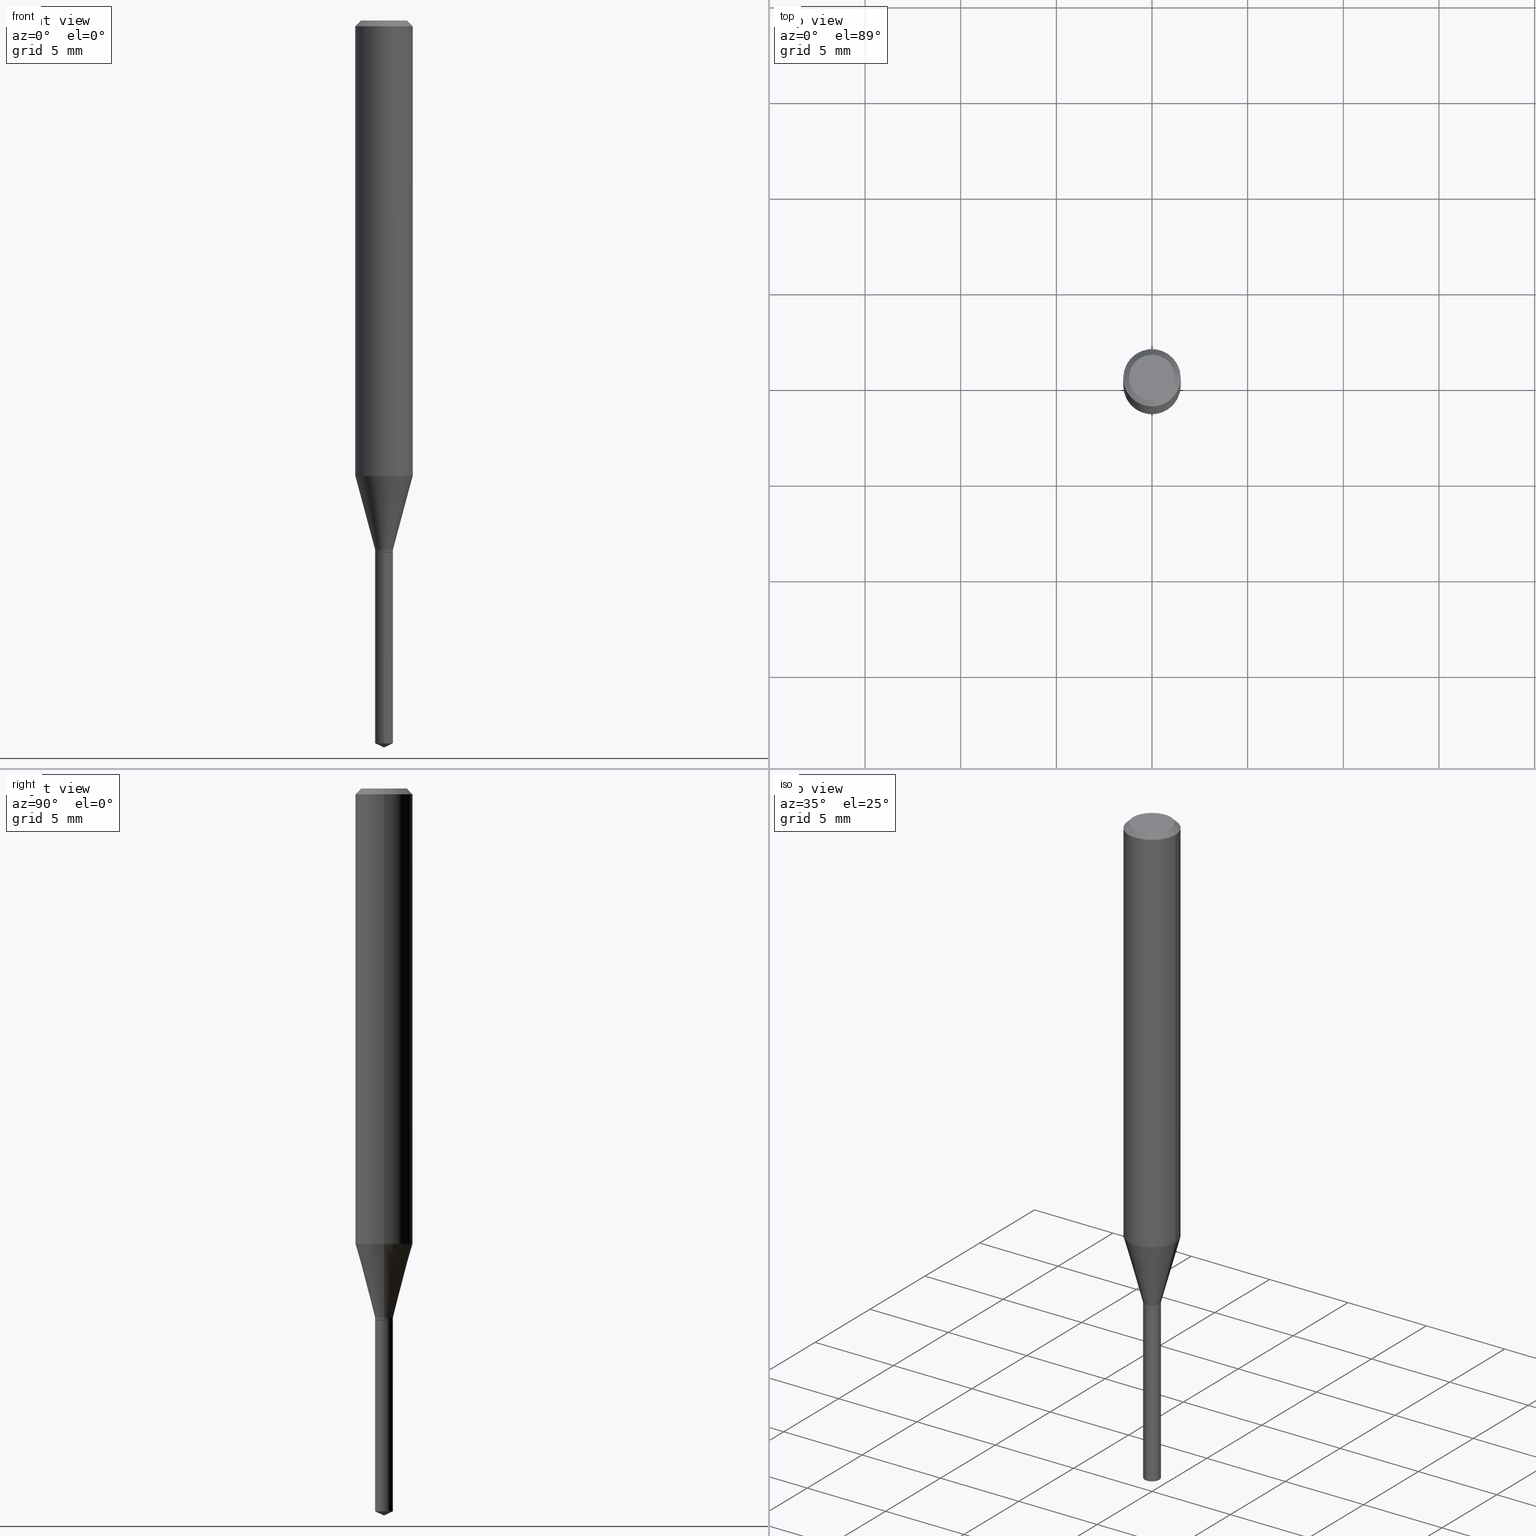
[diagram: canonical four-view strip — front | top / right | iso, engineering-drawing reading convention]
A machine part, canonical four-view strip (front | top / right | iso — engineering-drawing reading convention). The complete STEP part file that produces these views, byte-faithful:
ISO-10303-21;
HEADER;
FILE_DESCRIPTION (( 'STEP AP203' ),
    '1' );
FILE_NAME ('08321.STEP',
    '2024-04-24T14:19:01',
    ( '' ),
    ( '' ),
    'SwSTEP 2.0',
    'SolidWorks 2023',
    '' );
FILE_SCHEMA (( 'CONFIG_CONTROL_DESIGN' ));
ENDSEC;

DATA;
#1 = ORIENTED_EDGE ( 'NONE', *, *, #59, .T. ) ;
#2 = EDGE_LOOP ( 'NONE', ( #355, #142 ) ) ;
#3 = CALENDAR_DATE ( 2024, 24, 4 ) ;
#4 = DIRECTION ( 'NONE',  ( -2.445468806185136597E-29, 3.491481338843145583E-15, 1.000000000000000000 ) ) ;
#5 = AXIS2_PLACEMENT_3D ( 'NONE', #226, #150, #224 ) ;
#6 = ORIENTED_EDGE ( 'NONE', *, *, #206, .F. ) ;
#7 = AXIS2_PLACEMENT_3D ( 'NONE', #17, #51, #24 ) ;
#8 = CARTESIAN_POINT ( 'NONE',  ( 2.888098660104663328E-31, -4.123439461173779030E-17, -0.01181000000000006871 ) ) ;
#9 = ORIENTED_EDGE ( 'NONE', *, *, #123, .F. ) ;
#10 = ADVANCED_FACE ( 'NONE', ( #261 ), #417, .F. ) ;
#11 = UNCERTAINTY_MEASURE_WITH_UNIT (LENGTH_MEASURE( 1.000000000000000082E-05 ), #253, 'distance_accuracy_value', 'NONE');
#12 = DIRECTION ( 'NONE',  ( 0.7071067811865218156, -2.468850131081987665E-15, 0.7071067811865732189 ) ) ;
#13 = DATE_AND_TIME ( #3, #439 ) ;
#14 = AXIS2_PLACEMENT_3D ( 'NONE', #398, #242, #239 ) ;
#15 = DIRECTION ( 'NONE',  ( 1.000000000000000000, -6.982962677686268288E-15, 0.000000000000000000 ) ) ;
#16 = ORIENTED_EDGE ( 'NONE', *, *, #477, .F. ) ;
#17 = CARTESIAN_POINT ( 'NONE',  ( 3.637794463447608962E-29, -5.193815473249464484E-15, -1.487566569855763410 ) ) ;
#18 = DATE_AND_TIME ( #232, #235 ) ;
#19 = AXIS2_PLACEMENT_3D ( 'NONE', #420, #280, #324 ) ;
#20 = EDGE_CURVE ( 'NONE', #256, #252, #274, .T. ) ;
#21 = AXIS2_PLACEMENT_3D ( 'NONE', #322, #275, #433 ) ;
#22 = FACE_OUTER_BOUND ( 'NONE', #57, .T. ) ;
#23 = DIRECTION ( 'NONE',  ( 2.438088387897960049E-29, -3.491481338843145188E-15, -1.000000000000000000 ) ) ;
#24 = DIRECTION ( 'NONE',  ( -6.982962677686265922E-15, -1.000000000000000000, 0.000000000000000000 ) ) ;
#25 = ADVANCED_FACE ( 'NONE', ( #259 ), #247, .T. ) ;
#26 = APPROVAL ( #422, 'UNSPECIFIED' ) ;
#27 = LINE ( 'NONE', #413, #480 ) ;
#28 = ORIENTED_EDGE ( 'NONE', *, *, #228, .F. ) ;
#29 = AXIS2_PLACEMENT_3D ( 'NONE', #427, #75, #195 ) ;
#30 = VECTOR ( 'NONE', #117, 39.37007874015748143 ) ;
#31 = EDGE_LOOP ( 'NONE', ( #16, #456, #66, #301 ) ) ;
#32 = DIRECTION ( 'NONE',  ( -2.445468806185136597E-29, 3.491481338843145583E-15, 1.000000000000000000 ) ) ;
#33 = CARTESIAN_POINT ( 'NONE',  ( 2.675342873966538993E-29, -3.819680584694400481E-15, -1.093999999999999861 ) ) ;
#34 = ORIENTED_EDGE ( 'NONE', *, *, #20, .F. ) ;
#35 = EDGE_CURVE ( 'NONE', #447, #407, #352, .T. ) ;
#36 = CARTESIAN_POINT ( 'NONE',  ( -0.05905000000000010241, -2.851659473211515038E-15, -0.9369189295915679727 ) ) ;
#37 = VECTOR ( 'NONE', #423, 39.37007874015748143 ) ;
#38 = AXIS2_PLACEMENT_3D ( 'NONE', #459, #351, #312 ) ;
#39 = PERSON_AND_ORGANIZATION ( #202, #230 ) ;
#40 = APPROVAL_DATE_TIME ( #18, #233 ) ;
#41 = EDGE_CURVE ( 'NONE', #252, #218, #65, .T. ) ;
#42 = CARTESIAN_POINT ( 'NONE',  ( 2.888098660104663328E-31, -4.123439461173779030E-17, -0.01181000000000006871 ) ) ;
#43 = LOCAL_TIME ( 10, 19, 1.000000000000000000, #385 ) ;
#44 = DIRECTION ( 'NONE',  ( 1.000000000000000000, -6.982962677686265922E-15, 4.876176775795935793E-29 ) ) ;
#45 = CARTESIAN_POINT ( 'NONE',  ( 0.000000000000000000, 0.000000000000000000, 0.000000000000000000 ) ) ;
#46 = EDGE_CURVE ( 'NONE', #342, #185, #268, .T. ) ;
#47 = SHAPE_DEFINITION_REPRESENTATION ( #397, #77 ) ;
#48 = DIRECTION ( 'NONE',  ( -2.445468806185136597E-29, 3.491481338843145583E-15, 1.000000000000000000 ) ) ;
#49 = AXIS2_PLACEMENT_3D ( 'NONE', #365, #23, #402 ) ;
#50 = FACE_OUTER_BOUND ( 'NONE', #460, .T. ) ;
#51 = DIRECTION ( 'NONE',  ( -2.445460715294871217E-29, 3.491492925458510144E-15, 1.000000000000000000 ) ) ;
#52 = EDGE_CURVE ( 'NONE', #256, #251, #240, .T. ) ;
#53 = CARTESIAN_POINT ( 'NONE',  ( -0.01780000000000000332, -3.692300491224413469E-15, -1.094499999999999806 ) ) ;
#54 = CARTESIAN_POINT ( 'NONE',  ( 2.676565608369631794E-29, -3.821426325363822773E-15, -1.094499999999999806 ) ) ;
#55 = PERSON_AND_ORGANIZATION ( #202, #230 ) ;
#56 = AXIS2_PLACEMENT_3D ( 'NONE', #187, #266, #464 ) ;
#57 = EDGE_LOOP ( 'NONE', ( #284, #282 ) ) ;
#58 = CARTESIAN_POINT ( 'NONE',  ( 2.663115529935613220E-29, -3.802223178000185445E-15, -1.088999999999999968 ) ) ;
#59 = EDGE_CURVE ( 'NONE', #386, #252, #435, .T. ) ;
#60 = EDGE_LOOP ( 'NONE', ( #215, #111, #106 ) ) ;
#61 = ORIENTED_EDGE ( 'NONE', *, *, #82, .F. ) ;
#62 = ORIENTED_EDGE ( 'NONE', *, *, #46, .T. ) ;
#63 = ORIENTED_EDGE ( 'NONE', *, *, #340, .F. ) ;
#64 = LINE ( 'NONE', #292, #474 ) ;
#65 = CIRCLE ( 'NONE', #246, 0.05904999999999999832 ) ;
#66 = ORIENTED_EDGE ( 'NONE', *, *, #123, .T. ) ;
#67 = CARTESIAN_POINT ( 'NONE',  ( -1.277882170016318992E-16, -0.01830000000000382362, -1.094499999999999806 ) ) ;
#68 = EDGE_CURVE ( 'NONE', #176, #386, #488, .T. ) ;
#69 = CYLINDRICAL_SURFACE ( 'NONE', #118, 0.01830000000000000029 ) ;
#70 = APPROVAL_STATUS ( 'not_yet_approved' ) ;
#71 = ORIENTED_EDGE ( 'NONE', *, *, #68, .F. ) ;
#72 = APPROVAL_PERSON_ORGANIZATION ( #55, #369, #485 ) ;
#73 = ADVANCED_FACE ( 'NONE', ( #50 ), #104, .T. ) ;
#74 = DIRECTION ( 'NONE',  ( -6.982962677686267499E-15, -1.000000000000000000, 3.520397390770472803E-15 ) ) ;
#75 = DIRECTION ( 'NONE',  ( -2.445468806185136597E-29, 3.491481338843145583E-15, 1.000000000000000000 ) ) ;
#76 = FACE_OUTER_BOUND ( 'NONE', #31, .T. ) ;
#77 = ADVANCED_BREP_SHAPE_REPRESENTATION ( '08321', ( #363, #378, #446 ), #162 ) ;
#78 = CLOSED_SHELL ( 'NONE', ( #216, #25, #116, #329, #210 ) ) ;
#79 = CC_DESIGN_APPROVAL ( #233, ( #136 ) ) ;
#80 = DIRECTION ( 'NONE',  ( 1.000000000000000000, -6.982962677686266711E-15, 0.000000000000000000 ) ) ;
#81 = CARTESIAN_POINT ( 'NONE',  ( 1.300293206441250834E-16, 0.01829999999999617696, -1.094499999999999806 ) ) ;
#82 = EDGE_CURVE ( 'NONE', #218, #252, #431, .T. ) ;
#83 = DIRECTION ( 'NONE',  ( -2.445468806185136597E-29, 3.491481338843145583E-15, 1.000000000000000000 ) ) ;
#84 = CARTESIAN_POINT ( 'NONE',  ( 0.05904999999999999832, -4.535783407291118600E-16, -0.01181000000000006871 ) ) ;
#85 = CC_DESIGN_PERSON_AND_ORGANIZATION_ASSIGNMENT ( #90, #330, ( #462 ) ) ;
#86 = DIRECTION ( 'NONE',  ( 1.000000000000000000, -6.982962677686258033E-15, 0.000000000000000000 ) ) ;
#87 = CARTESIAN_POINT ( 'NONE',  ( 0.000000000000000000, 0.000000000000000000, 0.000000000000000000 ) ) ;
#88 = PERSON_AND_ORGANIZATION_ROLE ( 'design_owner' ) ;
#89 = CIRCLE ( 'NONE', #394, 0.01830000000000000029 ) ;
#90 = PERSON_AND_ORGANIZATION ( #202, #230 ) ;
#91 = CIRCLE ( 'NONE', #7, 0.01830000000000000029 ) ;
#92 = EDGE_CURVE ( 'NONE', #185, #342, #89, .T. ) ;
#93 = ORIENTED_EDGE ( 'NONE', *, *, #270, .T. ) ;
#94 = LINE ( 'NONE', #140, #199 ) ;
#95 = ORIENTED_EDGE ( 'NONE', *, *, #349, .F. ) ;
#96 = CARTESIAN_POINT ( 'NONE',  ( -0.05905000000000005383, 4.195754854663395423E-16, -2.904631170795524694E-30 ) ) ;
#97 = DIRECTION ( 'NONE',  ( 1.000000000000000000, -6.982962677686255667E-15, 0.000000000000000000 ) ) ;
#98 = VERTEX_POINT ( 'NONE', #165 ) ;
#99 = PLANE ( 'NONE',  #56 ) ;
#100 = EDGE_CURVE ( 'NONE', #182, #138, #302, .T. ) ;
#101 = ORIENTED_EDGE ( 'NONE', *, *, #424, .T. ) ;
#102 = LENGTH_MEASURE_WITH_UNIT ( LENGTH_MEASURE( 0.02539999999999999897 ), #298 );
#103 = LINE ( 'NONE', #67, #445 ) ;
#104 = CONICAL_SURFACE ( 'NONE', #332, 0.05904999999999999832, 0.7853981633974452814 ) ;
#105 = CIRCLE ( 'NONE', #367, 0.01830000000000000029 ) ;
#106 = ORIENTED_EDGE ( 'NONE', *, *, #449, .F. ) ;
#107 = ORIENTED_EDGE ( 'NONE', *, *, #469, .T. ) ;
#108 = PERSON_AND_ORGANIZATION_ROLE ( 'creator' ) ;
#109 = CARTESIAN_POINT ( 'NONE',  ( 2.888098660104663328E-31, -4.123439461173779030E-17, -0.01181000000000006871 ) ) ;
#110 = CARTESIAN_POINT ( 'NONE',  ( -0.01830000000000000029, 1.300293206440983361E-16, -9.001651215166479231E-31 ) ) ;
#111 = ORIENTED_EDGE ( 'NONE', *, *, #206, .T. ) ;
#112 = PERSON_AND_ORGANIZATION_ROLE ( 'design_supplier' ) ;
#113 = DESIGN_CONTEXT ( 'detailed design', #359, 'design' ) ;
#114 = DIRECTION ( 'NONE',  ( -2.445460715294871217E-29, 3.491492925458510144E-15, 1.000000000000000000 ) ) ;
#115 = APPROVAL_ROLE ( '' ) ;
#116 = ADVANCED_FACE ( 'NONE', ( #297 ), #290, .T. ) ;
#117 = DIRECTION ( 'NONE',  ( 6.439704144417024042E-15, 0.9063077870366512689, 0.4226182617406966657 ) ) ;
#118 = AXIS2_PLACEMENT_3D ( 'NONE', #267, #465, #186 ) ;
#119 = APPROVAL_PERSON_ORGANIZATION ( #121, #233, #153 ) ;
#120 = FACE_OUTER_BOUND ( 'NONE', #248, .T. ) ;
#121 = PERSON_AND_ORGANIZATION ( #202, #230 ) ;
#122 = CARTESIAN_POINT ( 'NONE',  ( 0.01830000000000000029, -3.947468801696059275E-15, -1.093999999999999861 ) ) ;
#123 = EDGE_CURVE ( 'NONE', #447, #342, #144, .T. ) ;
#124 = DIRECTION ( 'NONE',  ( 0.2588190451025211281, 1.565188264969622954E-15, 0.9659258262890679791 ) ) ;
#125 = AXIS2_PLACEMENT_3D ( 'NONE', #234, #393, #470 ) ;
#126 = CIRCLE ( 'NONE', #241, 0.01780000000000000332 ) ;
#127 = CYLINDRICAL_SURFACE ( 'NONE', #14, 0.01830000000000000029 ) ;
#128 = DIRECTION ( 'NONE',  ( -6.982962677686265922E-15, -1.000000000000000000, 0.000000000000000000 ) ) ;
#129 = ORIENTED_EDGE ( 'NONE', *, *, #41, .T. ) ;
#130 = EDGE_CURVE ( 'NONE', #138, #182, #311, .T. ) ;
#131 = COORDINATED_UNIVERSAL_TIME_OFFSET ( 5, 0, .BEHIND. ) ;
#132 = DIRECTION ( 'NONE',  ( 1.000000000000000000, -6.982962677686255667E-15, 0.000000000000000000 ) ) ;
#133 = DIRECTION ( 'NONE',  ( -6.982962677686265922E-15, -1.000000000000000000, 0.000000000000000000 ) ) ;
#134 = VECTOR ( 'NONE', #479, 39.37007874015748143 ) ;
#135 = DIRECTION ( 'NONE',  ( -2.445468806185136597E-29, 3.491481338843145583E-15, 1.000000000000000000 ) ) ;
#136 = PRODUCT_DEFINITION_FORMATION_WITH_SPECIFIED_SOURCE ( 'ANY', '', #357, .NOT_KNOWN. ) ;
#137 = EDGE_LOOP ( 'NONE', ( #375, #225, #255, #71 ) ) ;
#138 = VERTEX_POINT ( 'NONE', #428 ) ;
#139 = ORIENTED_EDGE ( 'NONE', *, *, #293, .F. ) ;
#140 = CARTESIAN_POINT ( 'NONE',  ( -0.01830000000000000029, -3.672193857356087232E-15, -1.088999999999999968 ) ) ;
#141 = CC_DESIGN_PERSON_AND_ORGANIZATION_ASSIGNMENT ( #201, #112, ( #136 ) ) ;
#142 = ORIENTED_EDGE ( 'NONE', *, *, #100, .T. ) ;
#143 = CARTESIAN_POINT ( 'NONE',  ( 0.01780000000000000332, -3.945723061026637772E-15, -1.094499999999999806 ) ) ;
#144 = LINE ( 'NONE', #264, #411 ) ;
#145 = ORIENTED_EDGE ( 'NONE', *, *, #92, .T. ) ;
#146 = VECTOR ( 'NONE', #371, 39.37007874015748143 ) ;
#147 = CARTESIAN_POINT ( 'NONE',  ( -0.05904999999999999832, -1.236659191178456045E-15, -0.01181000000000006871 ) ) ;
#148 = CALENDAR_DATE ( 2024, 24, 4 ) ;
#149 = DIRECTION ( 'NONE',  ( 1.000000000000000000, -6.982962677686266711E-15, 0.000000000000000000 ) ) ;
#150 = DIRECTION ( 'NONE',  ( -2.445468806185136597E-29, 3.491481338843145583E-15, 1.000000000000000000 ) ) ;
#151 = DATE_AND_TIME ( #307, #43 ) ;
#152 = CARTESIAN_POINT ( 'NONE',  ( 2.676565608369631794E-29, -3.821426325363822773E-15, -1.094499999999999806 ) ) ;
#153 = APPROVAL_ROLE ( '' ) ;
#154 = AXIS2_PLACEMENT_3D ( 'NONE', #313, #432, #80 ) ;
#155 = APPROVAL_PERSON_ORGANIZATION ( #468, #26, #115 ) ;
#156 = DIRECTION ( 'NONE',  ( 2.445468806185136597E-29, -3.491481338843145583E-15, -1.000000000000000000 ) ) ;
#157 = ADVANCED_FACE ( 'NONE', ( #76 ), #401, .T. ) ;
#158 = DIRECTION ( 'NONE',  ( -2.445468806185136597E-29, 3.491481338843145583E-15, 1.000000000000000000 ) ) ;
#159 = DIRECTION ( 'NONE',  ( 2.445468806185136597E-29, -3.491481338843145583E-15, -1.000000000000000000 ) ) ;
#160 = CARTESIAN_POINT ( 'NONE',  ( 0.01830000000000000029, -3.930011395001844240E-15, -1.088999999999999968 ) ) ;
#161 = AXIS2_PLACEMENT_3D ( 'NONE', #437, #384, #133 ) ;
#162 =( GEOMETRIC_REPRESENTATION_CONTEXT ( 3 ) GLOBAL_UNCERTAINTY_ASSIGNED_CONTEXT ( ( #11 ) ) GLOBAL_UNIT_ASSIGNED_CONTEXT ( ( #253, #338, #257 ) ) REPRESENTATION_CONTEXT ( 'NONE', 'WORKASPACE' ) );
#163 = EDGE_CURVE ( 'NONE', #387, #138, #103, .T. ) ;
#164 = FACE_OUTER_BOUND ( 'NONE', #300, .T. ) ;
#165 = CARTESIAN_POINT ( 'NONE',  ( 1.300293206441347223E-16, 0.01829999999999480653, -1.487566569855763410 ) ) ;
#166 = CARTESIAN_POINT ( 'NONE',  ( 0.05905000000000010241, -3.683578904795229057E-15, -0.9369189295915679727 ) ) ;
#167 = CARTESIAN_POINT ( 'NONE',  ( 0.04724000000000000421, -3.852183633974369345E-16, -3.380025165621689721E-19 ) ) ;
#168 = VERTEX_POINT ( 'NONE', #414 ) ;
#169 = AXIS2_PLACEMENT_3D ( 'NONE', #454, #32, #249 ) ;
#170 = DIRECTION ( 'NONE',  ( 0.000000000000000000, 0.000000000000000000, 1.000000000000000000 ) ) ;
#171 = ADVANCED_FACE ( 'NONE', ( #223 ), #418, .T. ) ;
#172 = EDGE_LOOP ( 'NONE', ( #288, #107, #331, #63 ) ) ;
#173 = APPROVAL_DATE_TIME ( #289, #369 ) ;
#174 = FACE_OUTER_BOUND ( 'NONE', #2, .T. ) ;
#175 = CARTESIAN_POINT ( 'NONE',  ( 3.637794463447608962E-29, -5.193815473249464484E-15, -1.487566569855763410 ) ) ;
#176 = VERTEX_POINT ( 'NONE', #36 ) ;
#177 = AXIS2_PLACEMENT_3D ( 'NONE', #419, #114, #347 ) ;
#178 = ADVANCED_FACE ( 'NONE', ( #388 ), #198, .T. ) ;
#179 = ORIENTED_EDGE ( 'NONE', *, *, #477, .T. ) ;
#180 = DIRECTION ( 'NONE',  ( 1.000000000000000000, -6.982962677686258033E-15, 0.000000000000000000 ) ) ;
#181 = DIRECTION ( 'NONE',  ( 1.000000000000000000, -6.982962677686255667E-15, 0.000000000000000000 ) ) ;
#182 = VERTEX_POINT ( 'NONE', #374 ) ;
#183 = ORIENTED_EDGE ( 'NONE', *, *, #283, .F. ) ;
#184 = CARTESIAN_POINT ( 'NONE',  ( -0.01830000000000000029, -3.680922560703194750E-15, -1.093999999999999861 ) ) ;
#185 = VERTEX_POINT ( 'NONE', #184 ) ;
#186 = DIRECTION ( 'NONE',  ( -6.982962677686265922E-15, -1.000000000000000000, 0.000000000000000000 ) ) ;
#187 = CARTESIAN_POINT ( 'NONE',  ( 2.676565608369631794E-29, -3.821426325363822773E-15, -1.094499999999999806 ) ) ;
#188 = DATE_AND_TIME ( #148, #190 ) ;
#189 = CIRCLE ( 'NONE', #19, 0.01830000000000000029 ) ;
#190 = LOCAL_TIME ( 10, 19, 1.000000000000000000, #279 ) ;
#191 = EDGE_LOOP ( 'NONE', ( #452, #295, #260, #382 ) ) ;
#192 = DIRECTION ( 'NONE',  ( -2.445468806185136597E-29, 3.491481338843145583E-15, 1.000000000000000000 ) ) ;
#193 = ADVANCED_FACE ( 'NONE', ( #345 ), #276, .T. ) ;
#194 = PERSON_AND_ORGANIZATION ( #202, #230 ) ;
#195 = DIRECTION ( 'NONE',  ( 1.000000000000000000, -6.982962677686266711E-15, 4.876185090822587894E-29 ) ) ;
#196 = DIRECTION ( 'NONE',  ( -2.445460715294871217E-29, 3.491492925458510144E-15, 1.000000000000000000 ) ) ;
#197 = CC_DESIGN_DATE_AND_TIME_ASSIGNMENT ( #151, #310, ( #205 ) ) ;
#198 = CONICAL_SURFACE ( 'NONE', #389, 0.01780000000000000332, 0.7853981633974119747 ) ;
#199 = VECTOR ( 'NONE', #444, 39.37007874015748854 ) ;
#200 = DIRECTION ( 'NONE',  ( 1.000000000000000000, -6.982962677686265922E-15, 4.876176775795936353E-29 ) ) ;
#201 = PERSON_AND_ORGANIZATION ( #202, #230 ) ;
#202 = PERSON ( 'UNSPECIFIED', 'UNSPECIFIED', 'UNSPECIFIED', ('UNSPECIFIED'), ('UNSPECIFIED'), ('UNSPECIFIED') ) ;
#203 = CARTESIAN_POINT ( 'NONE',  ( 2.291206016240548157E-29, -3.271234958677854531E-15, -0.9369189295915679727 ) ) ;
#204 = CIRCLE ( 'NONE', #395, 0.05905000000000010241 ) ;
#205 = SECURITY_CLASSIFICATION ( '', '', #350 ) ;
#206 = EDGE_CURVE ( 'NONE', #168, #387, #405, .T. ) ;
#207 = PLANE ( 'NONE',  #49 ) ;
#208 = CARTESIAN_POINT ( 'NONE',  ( 2.675342873966538993E-29, -3.819680584694400481E-15, -1.093999999999999861 ) ) ;
#209 = CARTESIAN_POINT ( 'NONE',  ( -0.01830000000000000029, -3.680922560703194750E-15, -1.088999999999999968 ) ) ;
#210 = ADVANCED_FACE ( 'NONE', ( #174 ), #99, .F. ) ;
#211 = AXIS2_PLACEMENT_3D ( 'NONE', #219, #196, #74 ) ;
#212 = APPLICATION_PROTOCOL_DEFINITION ( 'international standard', 'config_control_design', 1994, #359 ) ;
#213 = EDGE_LOOP ( 'NONE', ( #6, #373, #95 ) ) ;
#214 = DIRECTION ( 'NONE',  ( -1.000000000000000000, 6.982962677686266711E-15, 0.000000000000000000 ) ) ;
#215 = ORIENTED_EDGE ( 'NONE', *, *, #309, .F. ) ;
#216 = ADVANCED_FACE ( 'NONE', ( #341 ), #69, .T. ) ;
#217 = DIRECTION ( 'NONE',  ( -2.445468806185136877E-29, 3.491481338843145188E-15, 1.000000000000000000 ) ) ;
#218 = VERTEX_POINT ( 'NONE', #147 ) ;
#219 = CARTESIAN_POINT ( 'NONE',  ( -9.261931828548885815E-28, 1.322367415117763772E-13, 37.87397874015748300 ) ) ;
#220 = AXIS2_PLACEMENT_3D ( 'NONE', #33, #306, #308 ) ;
#221 = VECTOR ( 'NONE', #217, 39.37007874015748143 ) ;
#222 = EDGE_LOOP ( 'NONE', ( #376, #183 ) ) ;
#223 = FACE_OUTER_BOUND ( 'NONE', #303, .T. ) ;
#224 = DIRECTION ( 'NONE',  ( 1.000000000000000000, -6.982962677686266711E-15, 4.876176775795935793E-29 ) ) ;
#225 = ORIENTED_EDGE ( 'NONE', *, *, #243, .T. ) ;
#226 = CARTESIAN_POINT ( 'NONE',  ( 0.000000000000000000, 0.000000000000000000, 0.000000000000000000 ) ) ;
#227 = ORIENTED_EDGE ( 'NONE', *, *, #46, .F. ) ;
#228 = EDGE_CURVE ( 'NONE', #185, #416, #304, .T. ) ;
#229 = AXIS2_PLACEMENT_3D ( 'NONE', #8, #159, #214 ) ;
#230 = ORGANIZATION ( 'UNSPECIFIED', 'UNSPECIFIED', '' ) ;
#231 = DATE_TIME_ROLE ( 'creation_date' ) ;
#232 = CALENDAR_DATE ( 2024, 24, 4 ) ;
#233 = APPROVAL ( #70, 'UNSPECIFIED' ) ;
#234 = CARTESIAN_POINT ( 'NONE',  ( 2.291206016240548157E-29, -3.271234958677854531E-15, -0.9369189295915679727 ) ) ;
#235 = LOCAL_TIME ( 10, 19, 1.000000000000000000, #262 ) ;
#236 = CARTESIAN_POINT ( 'NONE',  ( 0.01830000000000000029, -3.930011395001844240E-15, -1.088999999999999968 ) ) ;
#237 = DIRECTION ( 'NONE',  ( 1.000000000000000000, -6.982962677686266711E-15, 4.876176775795935793E-29 ) ) ;
#238 = CC_DESIGN_DATE_AND_TIME_ASSIGNMENT ( #13, #231, ( #462 ) ) ;
#239 = DIRECTION ( 'NONE',  ( -6.982962677686265922E-15, -1.000000000000000000, 0.000000000000000000 ) ) ;
#240 = CIRCLE ( 'NONE', #29, 0.04724000000000000421 ) ;
#241 = AXIS2_PLACEMENT_3D ( 'NONE', #54, #158, #314 ) ;
#242 = DIRECTION ( 'NONE',  ( -2.445460715294871217E-29, 3.491492925458510144E-15, 1.000000000000000000 ) ) ;
#243 = EDGE_CURVE ( 'NONE', #416, #383, #189, .T. ) ;
#244 = DIRECTION ( 'NONE',  ( -2.445468806185136597E-29, 3.491481338843145583E-15, 1.000000000000000000 ) ) ;
#245 = FACE_OUTER_BOUND ( 'NONE', #137, .T. ) ;
#246 = AXIS2_PLACEMENT_3D ( 'NONE', #109, #263, #149 ) ;
#247 = CONICAL_SURFACE ( 'NONE', #38, 84.42940631927388040, 1.134464013796313786 ) ;
#248 = EDGE_LOOP ( 'NONE', ( #62, #336, #139, #484 ) ) ;
#249 = DIRECTION ( 'NONE',  ( 1.000000000000000000, -6.982962677686258033E-15, 0.000000000000000000 ) ) ;
#250 = ADVANCED_FACE ( 'NONE', ( #164 ), #285, .T. ) ;
#251 = VERTEX_POINT ( 'NONE', #316 ) ;
#252 = VERTEX_POINT ( 'NONE', #84 ) ;
#253 =( CONVERSION_BASED_UNIT ( 'INCH', #102 ) LENGTH_UNIT ( ) NAMED_UNIT ( #403 ) );
#254 = MECHANICAL_CONTEXT ( 'NONE', #273, 'mechanical' ) ;
#255 = ORIENTED_EDGE ( 'NONE', *, *, #340, .T. ) ;
#256 = VERTEX_POINT ( 'NONE', #167 ) ;
#257 =( NAMED_UNIT ( * ) SI_UNIT ( $, .STERADIAN. ) SOLID_ANGLE_UNIT ( ) );
#258 = CONICAL_SURFACE ( 'NONE', #318, 0.01830000000000000029, 0.2617993877991498519 ) ;
#259 = FACE_OUTER_BOUND ( 'NONE', #213, .T. ) ;
#260 = ORIENTED_EDGE ( 'NONE', *, *, #130, .F. ) ;
#261 = FACE_OUTER_BOUND ( 'NONE', #222, .T. ) ;
#262 = COORDINATED_UNIVERSAL_TIME_OFFSET ( 5, 0, .BEHIND. ) ;
#263 = DIRECTION ( 'NONE',  ( -2.445468806185136597E-29, 3.491481338843145583E-15, 1.000000000000000000 ) ) ;
#264 = CARTESIAN_POINT ( 'NONE',  ( 0.01780000000000000332, -3.945723061026637772E-15, -1.094499999999999806 ) ) ;
#265 = ORIENTED_EDGE ( 'NONE', *, *, #59, .F. ) ;
#266 = DIRECTION ( 'NONE',  ( 2.445460715294871217E-29, -3.491492925458510144E-15, -1.000000000000000000 ) ) ;
#267 = CARTESIAN_POINT ( 'NONE',  ( 2.676565608369631794E-29, -3.821426325363822773E-15, -1.094499999999999806 ) ) ;
#268 = CIRCLE ( 'NONE', #220, 0.01830000000000000029 ) ;
#269 = CC_DESIGN_SECURITY_CLASSIFICATION ( #205, ( #136 ) ) ;
#270 = EDGE_CURVE ( 'NONE', #342, #383, #404, .T. ) ;
#271 = PRODUCT_RELATED_PRODUCT_CATEGORY ( 'detail', '', ( #357 ) ) ;
#272 = DIRECTION ( 'NONE',  ( -2.438088387897960049E-29, 3.491481338843145188E-15, 1.000000000000000000 ) ) ;
#273 = APPLICATION_CONTEXT ( 'configuration controlled 3d designs of mechanical parts and assemblies' ) ;
#274 = LINE ( 'NONE', #421, #37 ) ;
#275 = DIRECTION ( 'NONE',  ( -2.445468806185136597E-29, 3.491481338843145583E-15, 1.000000000000000000 ) ) ;
#276 = CONICAL_SURFACE ( 'NONE', #229, 0.05904999999999999832, 0.7853981633974452814 ) ;
#277 = FACE_OUTER_BOUND ( 'NONE', #443, .T. ) ;
#278 = EDGE_CURVE ( 'NONE', #386, #176, #204, .T. ) ;
#279 = COORDINATED_UNIVERSAL_TIME_OFFSET ( 5, 0, .BEHIND. ) ;
#280 = DIRECTION ( 'NONE',  ( -2.445468806185136597E-29, 3.491481338843145583E-15, 1.000000000000000000 ) ) ;
#281 = LINE ( 'NONE', #471, #30 ) ;
#282 = ORIENTED_EDGE ( 'NONE', *, *, #52, .T. ) ;
#283 = EDGE_CURVE ( 'NONE', #407, #447, #126, .T. ) ;
#284 = ORIENTED_EDGE ( 'NONE', *, *, #315, .T. ) ;
#285 = CYLINDRICAL_SURFACE ( 'NONE', #425, 0.01830000000000000029 ) ;
#286 = EDGE_LOOP ( 'NONE', ( #334, #179, #227, #9 ) ) ;
#287 = FACE_OUTER_BOUND ( 'NONE', #172, .T. ) ;
#288 = ORIENTED_EDGE ( 'NONE', *, *, #293, .T. ) ;
#289 = DATE_AND_TIME ( #368, #362 ) ;
#290 = CONICAL_SURFACE ( 'NONE', #211, 84.42940631927388040, 1.134464013796313786 ) ;
#291 = CIRCLE ( 'NONE', #21, 0.04724000000000000421 ) ;
#292 = CARTESIAN_POINT ( 'NONE',  ( -0.05904999999999999832, 3.711095515056362547E-16, -0.01181000000000006871 ) ) ;
#293 = EDGE_CURVE ( 'NONE', #383, #416, #346, .T. ) ;
#294 = DIRECTION ( 'NONE',  ( 1.000000000000000000, -6.982962677686258033E-15, 0.000000000000000000 ) ) ;
#295 = ORIENTED_EDGE ( 'NONE', *, *, #323, .T. ) ;
#296 = CARTESIAN_POINT ( 'NONE',  ( 3.658653776152657051E-29, -5.223622565778476142E-15, -1.496099999999999985 ) ) ;
#297 = FACE_OUTER_BOUND ( 'NONE', #60, .T. ) ;
#298 =( LENGTH_UNIT ( ) NAMED_UNIT ( * ) SI_UNIT ( $, .METRE. ) );
#299 = CARTESIAN_POINT ( 'NONE',  ( 2.676565608369631794E-29, -3.821426325363822773E-15, -1.094499999999999806 ) ) ;
#300 = EDGE_LOOP ( 'NONE', ( #28, #145, #93, #410 ) ) ;
#301 = ORIENTED_EDGE ( 'NONE', *, *, #92, .F. ) ;
#302 = CIRCLE ( 'NONE', #161, 0.01830000000000000029 ) ;
#303 = EDGE_LOOP ( 'NONE', ( #458, #408, #1, #61 ) ) ;
#304 = LINE ( 'NONE', #110, #406 ) ;
#305 = APPROVAL_DATE_TIME ( #188, #26 ) ;
#306 = DIRECTION ( 'NONE',  ( -2.445468806185136597E-29, 3.491481338843145583E-15, 1.000000000000000000 ) ) ;
#307 = CALENDAR_DATE ( 2024, 24, 4 ) ;
#308 = DIRECTION ( 'NONE',  ( 1.000000000000000000, -6.982962677686258033E-15, 0.000000000000000000 ) ) ;
#309 = EDGE_CURVE ( 'NONE', #168, #98, #281, .T. ) ;
#310 = DATE_TIME_ROLE ( 'classification_date' ) ;
#311 = CIRCLE ( 'NONE', #177, 0.01830000000000000029 ) ;
#312 = DIRECTION ( 'NONE',  ( -6.982962677686267499E-15, -1.000000000000000000, 3.520397390770472803E-15 ) ) ;
#313 = CARTESIAN_POINT ( 'NONE',  ( 2.888098660104663328E-31, -4.123439461173779030E-17, -0.01181000000000006871 ) ) ;
#314 = DIRECTION ( 'NONE',  ( 1.000000000000000000, -6.982962677686255667E-15, 0.000000000000000000 ) ) ;
#315 = EDGE_CURVE ( 'NONE', #251, #256, #291, .T. ) ;
#316 = CARTESIAN_POINT ( 'NONE',  ( -0.04724000000000000421, 3.504923541997677355E-16, -3.380025165670481712E-19 ) ) ;
#317 = VECTOR ( 'NONE', #360, 39.37007874015748143 ) ;
#318 = AXIS2_PLACEMENT_3D ( 'NONE', #58, #135, #180 ) ;
#319 = CONICAL_SURFACE ( 'NONE', #169, 0.01830000000000000029, 0.2617993877991498519 ) ;
#320 = PERSON_AND_ORGANIZATION_ROLE ( 'classification_officer' ) ;
#321 = DIRECTION ( 'NONE',  ( -2.445460715294871217E-29, 3.491492925458510144E-15, 1.000000000000000000 ) ) ;
#322 = CARTESIAN_POINT ( 'NONE',  ( 8.265746106709734507E-48, -1.180129479067563789E-33, -3.380025165646692144E-19 ) ) ;
#323 = EDGE_CURVE ( 'NONE', #98, #182, #400, .T. ) ;
#324 = DIRECTION ( 'NONE',  ( 1.000000000000000000, -6.982962677686258033E-15, 0.000000000000000000 ) ) ;
#325 = AXIS2_PLACEMENT_3D ( 'NONE', #299, #390, #97 ) ;
#326 = VECTOR ( 'NONE', #321, 39.37007874015748143 ) ;
#327 = DIRECTION ( 'NONE',  ( 1.000000000000000000, 0.000000000000000000, 0.000000000000000000 ) ) ;
#328 = ORIENTED_EDGE ( 'NONE', *, *, #449, .T. ) ;
#329 = ADVANCED_FACE ( 'NONE', ( #361 ), #127, .T. ) ;
#330 = PERSON_AND_ORGANIZATION_ROLE ( 'creator' ) ;
#331 = ORIENTED_EDGE ( 'NONE', *, *, #278, .F. ) ;
#332 = AXIS2_PLACEMENT_3D ( 'NONE', #42, #156, #430 ) ;
#333 = CC_DESIGN_APPROVAL ( #26, ( #205 ) ) ;
#334 = ORIENTED_EDGE ( 'NONE', *, *, #35, .T. ) ;
#335 = CARTESIAN_POINT ( 'NONE',  ( 0.05905000000000005383, -4.123439461173744271E-16, 2.879382386107502672E-30 ) ) ;
#336 = ORIENTED_EDGE ( 'NONE', *, *, #228, .T. ) ;
#337 = ORIENTED_EDGE ( 'NONE', *, *, #323, .F. ) ;
#338 =( NAMED_UNIT ( * ) PLANE_ANGLE_UNIT ( ) SI_UNIT ( $, .RADIAN. ) );
#339 = DIRECTION ( 'NONE',  ( -2.445460715294871217E-29, 3.491492925458510144E-15, 1.000000000000000000 ) ) ;
#340 = EDGE_CURVE ( 'NONE', #383, #386, #476, .T. ) ;
#341 = FACE_OUTER_BOUND ( 'NONE', #191, .T. ) ;
#342 = VERTEX_POINT ( 'NONE', #122 ) ;
#343 = ORIENTED_EDGE ( 'NONE', *, *, #41, .F. ) ;
#344 = EDGE_LOOP ( 'NONE', ( #34, #450, #348, #472 ) ) ;
#345 = FACE_OUTER_BOUND ( 'NONE', #344, .T. ) ;
#346 = CIRCLE ( 'NONE', #426, 0.01830000000000000029 ) ;
#347 = DIRECTION ( 'NONE',  ( -6.982962677686265922E-15, -1.000000000000000000, 0.000000000000000000 ) ) ;
#348 = ORIENTED_EDGE ( 'NONE', *, *, #442, .T. ) ;
#349 = EDGE_CURVE ( 'NONE', #387, #98, #91, .T. ) ;
#350 = SECURITY_CLASSIFICATION_LEVEL ( 'unclassified' ) ;
#351 = DIRECTION ( 'NONE',  ( -2.445460715294871217E-29, 3.491492925458510144E-15, 1.000000000000000000 ) ) ;
#352 = CIRCLE ( 'NONE', #325, 0.01780000000000000332 ) ;
#353 = CC_DESIGN_APPROVAL ( #369, ( #462 ) ) ;
#354 = DIRECTION ( 'NONE',  ( -2.445468806185136597E-29, 3.491481338843145583E-15, 1.000000000000000000 ) ) ;
#355 = ORIENTED_EDGE ( 'NONE', *, *, #130, .T. ) ;
#356 = ADVANCED_FACE ( 'NONE', ( #120 ), #396, .T. ) ;
#357 = PRODUCT ( '08321', '08321', '', ( #254 ) ) ;
#358 = CARTESIAN_POINT ( 'NONE',  ( 0.01830000000000000029, -1.277882170016586711E-16, 8.923403499706563286E-31 ) ) ;
#359 = APPLICATION_CONTEXT ( 'configuration controlled 3d designs of mechanical parts and assemblies' ) ;
#360 = DIRECTION ( 'NONE',  ( -2.445468806185136877E-29, 3.491481338843145188E-15, 1.000000000000000000 ) ) ;
#361 = FACE_OUTER_BOUND ( 'NONE', #415, .T. ) ;
#362 = LOCAL_TIME ( 10, 19, 1.000000000000000000, #131 ) ;
#363 = MANIFOLD_SOLID_BREP ( 'Body-Move/Copy2[1]', #78 ) ;
#364 = CC_DESIGN_PERSON_AND_ORGANIZATION_ASSIGNMENT ( #482, #88, ( #357 ) ) ;
#365 = CARTESIAN_POINT ( 'NONE',  ( 4.132873053354867254E-48, -5.900647395337818946E-34, -1.690012582823346072E-19 ) ) ;
#366 = LINE ( 'NONE', #96, #221 ) ;
#367 = AXIS2_PLACEMENT_3D ( 'NONE', #175, #377, #128 ) ;
#368 = CALENDAR_DATE ( 2024, 24, 4 ) ;
#369 = APPROVAL ( #380, 'UNSPECIFIED' ) ;
#370 = ORIENTED_EDGE ( 'NONE', *, *, #278, .T. ) ;
#371 = DIRECTION ( 'NONE',  ( -6.328713451373368590E-15, -0.9063077870366483824, 0.4226182617407029940 ) ) ;
#372 = CARTESIAN_POINT ( 'NONE',  ( 0.000000000000000000, 0.000000000000000000, 0.000000000000000000 ) ) ;
#373 = ORIENTED_EDGE ( 'NONE', *, *, #309, .T. ) ;
#374 = CARTESIAN_POINT ( 'NONE',  ( 1.300293206441347716E-16, 0.01829999999999618043, -1.094499999999999806 ) ) ;
#375 = ORIENTED_EDGE ( 'NONE', *, *, #469, .F. ) ;
#376 = ORIENTED_EDGE ( 'NONE', *, *, #35, .F. ) ;
#377 = DIRECTION ( 'NONE',  ( -2.445460715294871217E-29, 3.491492925458510144E-15, 1.000000000000000000 ) ) ;
#378 = MANIFOLD_SOLID_BREP ( 'Body-Move/Copy2[2]', #457 ) ;
#379 = VECTOR ( 'NONE', #124, 39.37007874015748854 ) ;
#380 = APPROVAL_STATUS ( 'not_yet_approved' ) ;
#381 = CC_DESIGN_PERSON_AND_ORGANIZATION_ASSIGNMENT ( #39, #320, ( #205 ) ) ;
#382 = ORIENTED_EDGE ( 'NONE', *, *, #163, .F. ) ;
#383 = VERTEX_POINT ( 'NONE', #160 ) ;
#384 = DIRECTION ( 'NONE',  ( -2.445460715294871217E-29, 3.491492925458510144E-15, 1.000000000000000000 ) ) ;
#385 = COORDINATED_UNIVERSAL_TIME_OFFSET ( 5, 0, .BEHIND. ) ;
#386 = VERTEX_POINT ( 'NONE', #166 ) ;
#387 = VERTEX_POINT ( 'NONE', #475 ) ;
#388 = FACE_OUTER_BOUND ( 'NONE', #286, .T. ) ;
#389 = AXIS2_PLACEMENT_3D ( 'NONE', #409, #192, #132 ) ;
#390 = DIRECTION ( 'NONE',  ( -2.445468806185136597E-29, 3.491481338843145583E-15, 1.000000000000000000 ) ) ;
#391 = ORIENTED_EDGE ( 'NONE', *, *, #20, .T. ) ;
#392 = ADVANCED_FACE ( 'NONE', ( #277 ), #434, .T. ) ;
#393 = DIRECTION ( 'NONE',  ( -2.445468806185136597E-29, 3.491481338843145583E-15, 1.000000000000000000 ) ) ;
#394 = AXIS2_PLACEMENT_3D ( 'NONE', #208, #483, #294 ) ;
#395 = AXIS2_PLACEMENT_3D ( 'NONE', #203, #354, #15 ) ;
#396 = CYLINDRICAL_SURFACE ( 'NONE', #412, 0.01830000000000000029 ) ;
#397 = PRODUCT_DEFINITION_SHAPE ( 'NONE', 'NONE',  #462 ) ;
#398 = CARTESIAN_POINT ( 'NONE',  ( 2.676565608369631794E-29, -3.821426325363822773E-15, -1.094499999999999806 ) ) ;
#399 = ADVANCED_FACE ( 'NONE', ( #22 ), #207, .F. ) ;
#400 = LINE ( 'NONE', #81, #326 ) ;
#401 = CONICAL_SURFACE ( 'NONE', #466, 0.01780000000000000332, 0.7853981633974119747 ) ;
#402 = DIRECTION ( 'NONE',  ( -1.000000000000000000, 6.982962677686265922E-15, -4.876176775795935793E-29 ) ) ;
#403 = DIMENSIONAL_EXPONENTS ( 1.000000000000000000, 0.000000000000000000, 0.000000000000000000, 0.000000000000000000, 0.000000000000000000, 0.000000000000000000, 0.000000000000000000 ) ;
#404 = LINE ( 'NONE', #358, #134 ) ;
#405 = LINE ( 'NONE', #296, #146 ) ;
#406 = VECTOR ( 'NONE', #461, 39.37007874015748143 ) ;
#407 = VERTEX_POINT ( 'NONE', #53 ) ;
#408 = ORIENTED_EDGE ( 'NONE', *, *, #68, .T. ) ;
#409 = CARTESIAN_POINT ( 'NONE',  ( 2.676565608369631794E-29, -3.821426325363822773E-15, -1.094499999999999806 ) ) ;
#410 = ORIENTED_EDGE ( 'NONE', *, *, #243, .F. ) ;
#411 = VECTOR ( 'NONE', #12, 39.37007874015748143 ) ;
#412 = AXIS2_PLACEMENT_3D ( 'NONE', #45, #48, #200 ) ;
#413 = CARTESIAN_POINT ( 'NONE',  ( -0.01780000000000000332, -3.694949718398524670E-15, -1.094499999999999806 ) ) ;
#414 = CARTESIAN_POINT ( 'NONE',  ( 3.658653776152655930E-29, -5.223622565778476142E-15, -1.496099999999999985 ) ) ;
#415 = EDGE_LOOP ( 'NONE', ( #337, #328, #463, #453 ) ) ;
#416 = VERTEX_POINT ( 'NONE', #209 ) ;
#417 = PLANE ( 'NONE',  #473 ) ;
#418 = CYLINDRICAL_SURFACE ( 'NONE', #5, 0.05905000000000005383 ) ;
#419 = CARTESIAN_POINT ( 'NONE',  ( 2.676565608369631794E-29, -3.821426325363822773E-15, -1.094499999999999806 ) ) ;
#420 = CARTESIAN_POINT ( 'NONE',  ( 2.663115529935613220E-29, -3.802223178000185445E-15, -1.088999999999999968 ) ) ;
#421 = CARTESIAN_POINT ( 'NONE',  ( 0.05904999999999999832, -4.463468013801466955E-16, -0.01181000000000006871 ) ) ;
#422 = APPROVAL_STATUS ( 'not_yet_approved' ) ;
#423 = DIRECTION ( 'NONE',  ( 0.7071067811865453523, -7.319954787623248157E-15, -0.7071067811865496822 ) ) ;
#424 = EDGE_CURVE ( 'NONE', #176, #218, #366, .T. ) ;
#425 = AXIS2_PLACEMENT_3D ( 'NONE', #87, #436, #441 ) ;
#426 = AXIS2_PLACEMENT_3D ( 'NONE', #478, #244, #86 ) ;
#427 = CARTESIAN_POINT ( 'NONE',  ( 8.265746106709734507E-48, -1.180129479067563789E-33, -3.380025165646692144E-19 ) ) ;
#428 = CARTESIAN_POINT ( 'NONE',  ( -1.277882170016318992E-16, -0.01830000000000382362, -1.094499999999999806 ) ) ;
#429 = CC_DESIGN_PERSON_AND_ORGANIZATION_ASSIGNMENT ( #194, #108, ( #136 ) ) ;
#430 = DIRECTION ( 'NONE',  ( -1.000000000000000000, 6.982962677686266711E-15, 0.000000000000000000 ) ) ;
#431 = CIRCLE ( 'NONE', #154, 0.05904999999999999832 ) ;
#432 = DIRECTION ( 'NONE',  ( -2.445468806185136597E-29, 3.491481338843145583E-15, 1.000000000000000000 ) ) ;
#433 = DIRECTION ( 'NONE',  ( 1.000000000000000000, -6.982962677686266711E-15, 4.876185090822587894E-29 ) ) ;
#434 = CYLINDRICAL_SURFACE ( 'NONE', #467, 0.05905000000000005383 ) ;
#435 = LINE ( 'NONE', #335, #317 ) ;
#436 = DIRECTION ( 'NONE',  ( -2.445468806185136597E-29, 3.491481338843145583E-15, 1.000000000000000000 ) ) ;
#437 = CARTESIAN_POINT ( 'NONE',  ( 2.676565608369631794E-29, -3.821426325363822773E-15, -1.094499999999999806 ) ) ;
#438 = CARTESIAN_POINT ( 'NONE',  ( 0.000000000000000000, 0.000000000000000000, 0.000000000000000000 ) ) ;
#439 = LOCAL_TIME ( 10, 19, 1.000000000000000000, #486 ) ;
#440 = ORIENTED_EDGE ( 'NONE', *, *, #52, .F. ) ;
#441 = DIRECTION ( 'NONE',  ( 1.000000000000000000, -6.982962677686265922E-15, 4.876176775795936353E-29 ) ) ;
#442 = EDGE_CURVE ( 'NONE', #251, #218, #64, .T. ) ;
#443 = EDGE_LOOP ( 'NONE', ( #370, #101, #343, #265 ) ) ;
#444 = DIRECTION ( 'NONE',  ( -0.2588190451025211281, 5.211531920934547886E-15, 0.9659258262890679791 ) ) ;
#445 = VECTOR ( 'NONE', #339, 39.37007874015748143 ) ;
#446 = AXIS2_PLACEMENT_3D ( 'NONE', #372, #170, #327 ) ;
#447 = VERTEX_POINT ( 'NONE', #143 ) ;
#448 = DIRECTION ( 'NONE',  ( -0.7071067811865453523, 2.468850131082234184E-15, -0.7071067811865496822 ) ) ;
#449 = EDGE_CURVE ( 'NONE', #98, #387, #105, .T. ) ;
#450 = ORIENTED_EDGE ( 'NONE', *, *, #315, .F. ) ;
#451 = APPLICATION_PROTOCOL_DEFINITION ( 'international standard', 'config_control_design', 1994, #273 ) ;
#452 = ORIENTED_EDGE ( 'NONE', *, *, #349, .T. ) ;
#453 = ORIENTED_EDGE ( 'NONE', *, *, #100, .F. ) ;
#454 = CARTESIAN_POINT ( 'NONE',  ( 2.663115529935613220E-29, -3.802223178000185445E-15, -1.088999999999999968 ) ) ;
#455 = CARTESIAN_POINT ( 'NONE',  ( 2.676565608369631794E-29, -3.821426325363822773E-15, -1.094499999999999806 ) ) ;
#456 = ORIENTED_EDGE ( 'NONE', *, *, #283, .T. ) ;
#457 = CLOSED_SHELL ( 'NONE', ( #178, #73, #392, #487, #356, #250, #481, #171, #193, #399, #10, #157 ) ) ;
#458 = ORIENTED_EDGE ( 'NONE', *, *, #424, .F. ) ;
#459 = CARTESIAN_POINT ( 'NONE',  ( -9.261931828548885815E-28, 1.322367415117763772E-13, 37.87397874015748300 ) ) ;
#460 = EDGE_LOOP ( 'NONE', ( #440, #391, #129, #489 ) ) ;
#461 = DIRECTION ( 'NONE',  ( -2.445468806185136877E-29, 3.491481338843145188E-15, 1.000000000000000000 ) ) ;
#462 = PRODUCT_DEFINITION ( 'UNKNOWN', '', #136, #113 ) ;
#463 = ORIENTED_EDGE ( 'NONE', *, *, #163, .T. ) ;
#464 = DIRECTION ( 'NONE',  ( 6.982962677686265922E-15, 1.000000000000000000, -3.491492925458510144E-15 ) ) ;
#465 = DIRECTION ( 'NONE',  ( -2.445460715294871217E-29, 3.491492925458510144E-15, 1.000000000000000000 ) ) ;
#466 = AXIS2_PLACEMENT_3D ( 'NONE', #455, #4, #181 ) ;
#467 = AXIS2_PLACEMENT_3D ( 'NONE', #438, #83, #237 ) ;
#468 = PERSON_AND_ORGANIZATION ( #202, #230 ) ;
#469 = EDGE_CURVE ( 'NONE', #416, #176, #94, .T. ) ;
#470 = DIRECTION ( 'NONE',  ( 1.000000000000000000, -6.982962677686268288E-15, 0.000000000000000000 ) ) ;
#471 = CARTESIAN_POINT ( 'NONE',  ( 3.658671642415649744E-29, -5.223597202677443246E-15, -1.496099999999999985 ) ) ;
#472 = ORIENTED_EDGE ( 'NONE', *, *, #82, .T. ) ;
#473 = AXIS2_PLACEMENT_3D ( 'NONE', #152, #272, #44 ) ;
#474 = VECTOR ( 'NONE', #448, 39.37007874015748143 ) ;
#475 = CARTESIAN_POINT ( 'NONE',  ( -1.277882170016222849E-16, -0.01830000000000519753, -1.487566569855763410 ) ) ;
#476 = LINE ( 'NONE', #236, #379 ) ;
#477 = EDGE_CURVE ( 'NONE', #407, #185, #27, .T. ) ;
#478 = CARTESIAN_POINT ( 'NONE',  ( 2.663115529935613220E-29, -3.802223178000185445E-15, -1.088999999999999968 ) ) ;
#479 = DIRECTION ( 'NONE',  ( -2.445468806185136877E-29, 3.491481338843145188E-15, 1.000000000000000000 ) ) ;
#480 = VECTOR ( 'NONE', #490, 39.37007874015748143 ) ;
#481 = ADVANCED_FACE ( 'NONE', ( #245 ), #258, .T. ) ;
#482 = PERSON_AND_ORGANIZATION ( #202, #230 ) ;
#483 = DIRECTION ( 'NONE',  ( -2.445468806185136597E-29, 3.491481338843145583E-15, 1.000000000000000000 ) ) ;
#484 = ORIENTED_EDGE ( 'NONE', *, *, #270, .F. ) ;
#485 = APPROVAL_ROLE ( '' ) ;
#486 = COORDINATED_UNIVERSAL_TIME_OFFSET ( 5, 0, .BEHIND. ) ;
#487 = ADVANCED_FACE ( 'NONE', ( #287 ), #319, .T. ) ;
#488 = CIRCLE ( 'NONE', #125, 0.05905000000000010241 ) ;
#489 = ORIENTED_EDGE ( 'NONE', *, *, #442, .F. ) ;
#490 = DIRECTION ( 'NONE',  ( -0.7071067811865218156, 7.493145998870261075E-15, 0.7071067811865732189 ) ) ;
ENDSEC;
END-ISO-10303-21;
